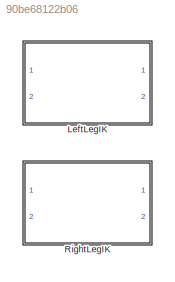
MODEL slx_90be68122b06
KIND library
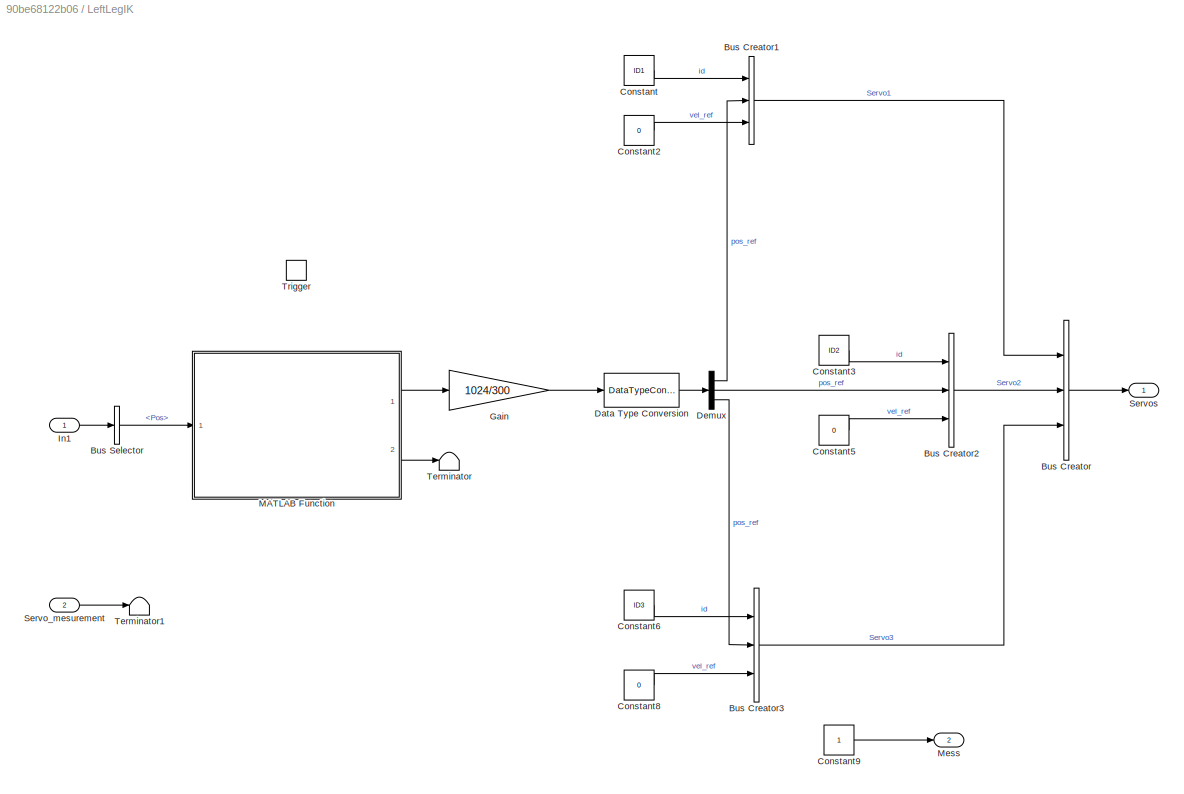
BLOCK [SubSystem] LeftLegIK
  Ports = [2, 2, 0, 1]
  RTWFcnName = LeftLegIK
  RTWFcnNameOpts = User specified
  RTWSystemCode = Reusable function
  RequestExecContextInheritance = off
  TreatAsAtomicUnit = on
BLOCK [BusCreator] LeftLegIK/Bus Creator
  DisplayOption = bar
  InheritFromInputs = off
  Inputs = 3
  NonVirtualBus = on
  OutDataTypeStr = Bus: Leg_ref
  Ports = [3, 1]
BLOCK [BusCreator] LeftLegIK/Bus Creator1
  DisplayOption = bar
  InheritFromInputs = off
  Inputs = 3
  NonVirtualBus = on
  OutDataTypeStr = Bus: Servo
  Ports = [3, 1]
BLOCK [BusCreator] LeftLegIK/Bus Creator2
  DisplayOption = bar
  InheritFromInputs = off
  Inputs = 3
  NonVirtualBus = on
  OutDataTypeStr = Bus: Servo
  Ports = [3, 1]
BLOCK [BusCreator] LeftLegIK/Bus Creator3
  DisplayOption = bar
  InheritFromInputs = off
  Inputs = 3
  NonVirtualBus = on
  OutDataTypeStr = Bus: Servo
  Ports = [3, 1]
BLOCK [BusSelector] LeftLegIK/Bus Selector
  OutputSignals = Pos
  Ports = [1, 1]
BLOCK [Constant] LeftLegIK/Constant
  OutDataTypeStr = uint8
  SampleTime = -1
  Value = ID1
BLOCK [Constant] LeftLegIK/Constant2
  OutDataTypeStr = uint16
  SampleTime = -1
  Value = 0
BLOCK [Constant] LeftLegIK/Constant3
  OutDataTypeStr = uint8
  SampleTime = -1
  Value = ID2
BLOCK [Constant] LeftLegIK/Constant5
  OutDataTypeStr = uint16
  SampleTime = -1
  Value = 0
BLOCK [Constant] LeftLegIK/Constant6
  OutDataTypeStr = uint8
  SampleTime = -1
  Value = ID3
BLOCK [Constant] LeftLegIK/Constant8
  OutDataTypeStr = uint16
  SampleTime = -1
  Value = 0
BLOCK [Constant] LeftLegIK/Constant9
  OutDataTypeStr = uint16
  SampleTime = -1
BLOCK [DataTypeConversion] LeftLegIK/Data Type Conversion
  OutDataTypeStr = uint16
  RndMeth = Floor
  SaturateOnIntegerOverflow = off
BLOCK [Demux] LeftLegIK/Demux
  DisplayOption = bar
  Outputs = 3
  Ports = [1, 3]
BLOCK [Gain] LeftLegIK/Gain
  Gain = 1024/300
  OutDataTypeStr = Inherit: Inherit via internal rule
  ParamDataTypeStr = Inherit: Inherit via internal rule
  SaturateOnIntegerOverflow = off
BLOCK [Inport] LeftLegIK/In1
  IconDisplay = Port number
  OutDataTypeStr = Bus: Leg_data
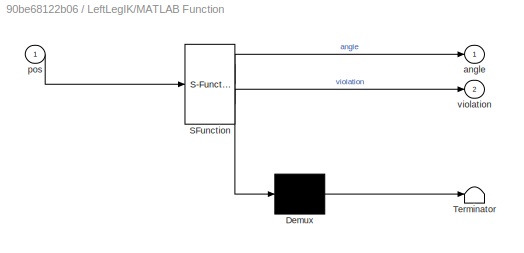
BLOCK [SubSystem] LeftLegIK/MATLAB Function
  ErrorFcn = Stateflow.Translate.translate
  PermitHierarchicalResolution = ExplicitOnly
  Ports = [1, 2]
  RequestExecContextInheritance = off
  SFBlockType = MATLAB Function
  TreatAsAtomicUnit = on
BLOCK [Demux] LeftLegIK/MATLAB Function/ Demux 
  Outputs = 1
  Ports = [1, 1]
BLOCK [S-Function] LeftLegIK/MATLAB Function/ SFunction 
  EnableBusSupport = off
  FunctionName = sf_sfun
  PortCounts = [1 3]
  Ports = [1, 3]
  Tag = Stateflow S-Function LegIK 3
BLOCK [Terminator] LeftLegIK/MATLAB Function/ Terminator 
BLOCK [Outport] LeftLegIK/MATLAB Function/angle
  IconDisplay = Port number
BLOCK [Inport] LeftLegIK/MATLAB Function/pos
  IconDisplay = Port number
BLOCK [Outport] LeftLegIK/MATLAB Function/violation
  IconDisplay = Port number
  Port = 2
BLOCK [Outport] LeftLegIK/Mess
  IconDisplay = Port number
  Port = 2
BLOCK [Inport] LeftLegIK/Servo_mesurement
  IconDisplay = Port number
  OutDataTypeStr = Bus: Leg_mes
  Port = 2
BLOCK [Outport] LeftLegIK/Servos
  IconDisplay = Port number
  OutDataTypeStr = Bus: Leg_ref
  PortDimensions = 3
BLOCK [Terminator] LeftLegIK/Terminator
BLOCK [Terminator] LeftLegIK/Terminator1
BLOCK [TriggerPort] LeftLegIK/Trigger
  PortDimensions = 1
  Ports = []
  StatesWhenEnabling = held
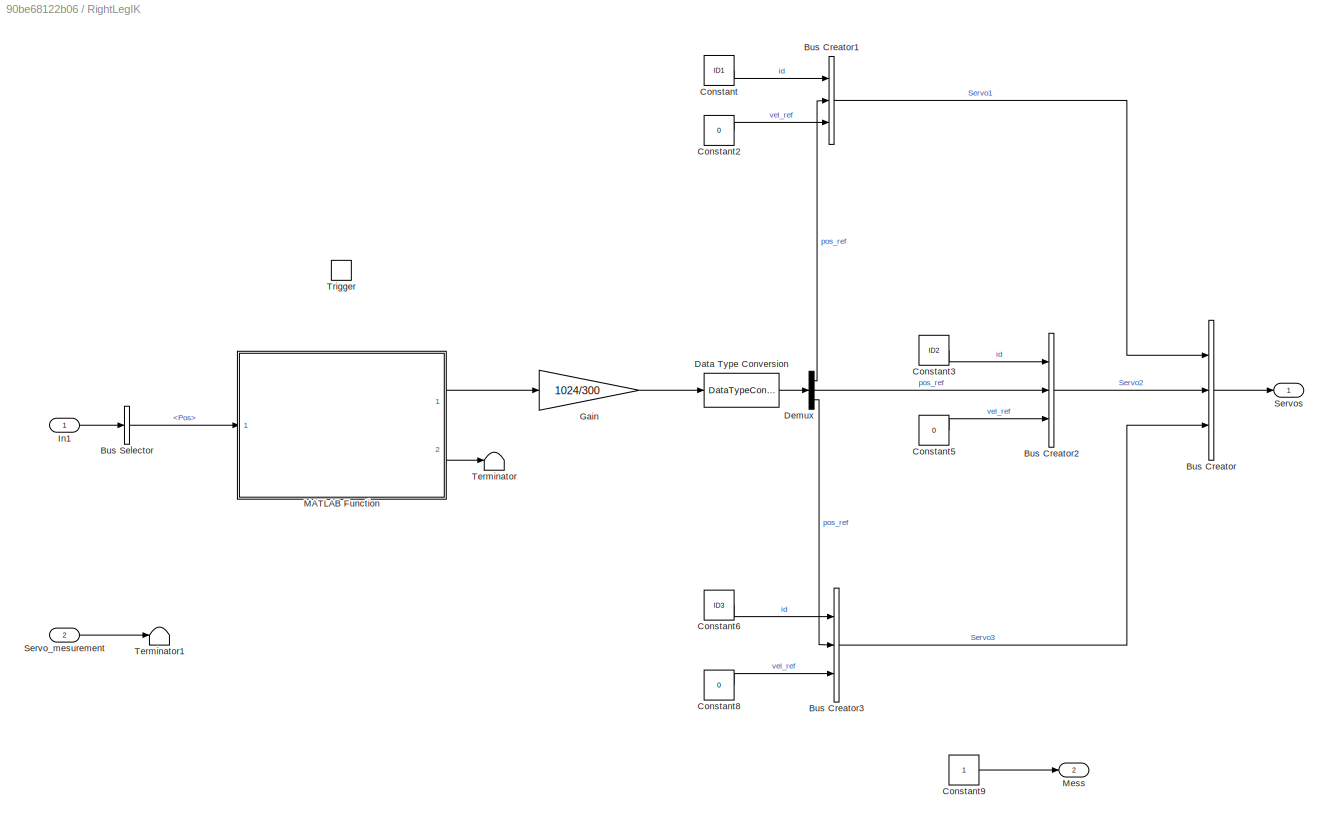
BLOCK [SubSystem] RightLegIK
  Ports = [2, 2, 0, 1]
  RTWFcnName = RightLegIK
  RTWFcnNameOpts = User specified
  RTWSystemCode = Reusable function
  RequestExecContextInheritance = off
  TreatAsAtomicUnit = on
BLOCK [BusCreator] RightLegIK/Bus Creator
  DisplayOption = bar
  InheritFromInputs = off
  Inputs = 3
  NonVirtualBus = on
  OutDataTypeStr = Bus: Leg_ref
  Ports = [3, 1]
BLOCK [BusCreator] RightLegIK/Bus Creator1
  DisplayOption = bar
  InheritFromInputs = off
  Inputs = 3
  NonVirtualBus = on
  OutDataTypeStr = Bus: Servo
  Ports = [3, 1]
BLOCK [BusCreator] RightLegIK/Bus Creator2
  DisplayOption = bar
  InheritFromInputs = off
  Inputs = 3
  NonVirtualBus = on
  OutDataTypeStr = Bus: Servo
  Ports = [3, 1]
BLOCK [BusCreator] RightLegIK/Bus Creator3
  DisplayOption = bar
  InheritFromInputs = off
  Inputs = 3
  NonVirtualBus = on
  OutDataTypeStr = Bus: Servo
  Ports = [3, 1]
BLOCK [BusSelector] RightLegIK/Bus Selector
  OutputSignals = Pos
  Ports = [1, 1]
BLOCK [Constant] RightLegIK/Constant
  OutDataTypeStr = uint8
  SampleTime = -1
  Value = ID1
BLOCK [Constant] RightLegIK/Constant2
  OutDataTypeStr = uint16
  SampleTime = -1
  Value = 0
BLOCK [Constant] RightLegIK/Constant3
  OutDataTypeStr = uint8
  SampleTime = -1
  Value = ID2
BLOCK [Constant] RightLegIK/Constant5
  OutDataTypeStr = uint16
  SampleTime = -1
  Value = 0
BLOCK [Constant] RightLegIK/Constant6
  OutDataTypeStr = uint8
  SampleTime = -1
  Value = ID3
BLOCK [Constant] RightLegIK/Constant8
  OutDataTypeStr = uint16
  SampleTime = -1
  Value = 0
BLOCK [Constant] RightLegIK/Constant9
  OutDataTypeStr = uint16
BLOCK [DataTypeConversion] RightLegIK/Data Type Conversion
  OutDataTypeStr = uint16
  RndMeth = Floor
  SaturateOnIntegerOverflow = off
BLOCK [Demux] RightLegIK/Demux
  DisplayOption = bar
  Outputs = 3
  Ports = [1, 3]
BLOCK [Gain] RightLegIK/Gain
  Gain = 1024/300
  OutDataTypeStr = Inherit: Inherit via internal rule
  ParamDataTypeStr = Inherit: Inherit via internal rule
  SaturateOnIntegerOverflow = off
BLOCK [Inport] RightLegIK/In1
  IconDisplay = Port number
  OutDataTypeStr = Bus: Leg_data
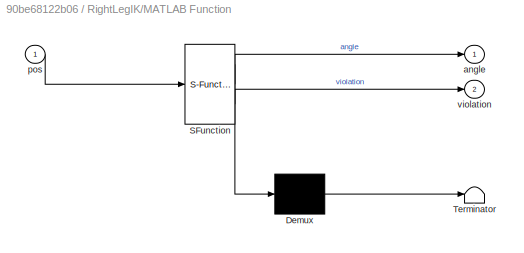
BLOCK [SubSystem] RightLegIK/MATLAB Function
  ErrorFcn = Stateflow.Translate.translate
  PermitHierarchicalResolution = ExplicitOnly
  Ports = [1, 2]
  RequestExecContextInheritance = off
  SFBlockType = MATLAB Function
  TreatAsAtomicUnit = on
BLOCK [Demux] RightLegIK/MATLAB Function/ Demux 
  Outputs = 1
  Ports = [1, 1]
BLOCK [S-Function] RightLegIK/MATLAB Function/ SFunction 
  EnableBusSupport = off
  FunctionName = sf_sfun
  PortCounts = [1 3]
  Ports = [1, 3]
  Tag = Stateflow S-Function LegIK 4
BLOCK [Terminator] RightLegIK/MATLAB Function/ Terminator 
BLOCK [Outport] RightLegIK/MATLAB Function/angle
  IconDisplay = Port number
BLOCK [Inport] RightLegIK/MATLAB Function/pos
  IconDisplay = Port number
BLOCK [Outport] RightLegIK/MATLAB Function/violation
  IconDisplay = Port number
  Port = 2
BLOCK [Outport] RightLegIK/Mess
  IconDisplay = Port number
  Port = 2
BLOCK [Inport] RightLegIK/Servo_mesurement
  IconDisplay = Port number
  OutDataTypeStr = Bus: Leg_mes
  Port = 2
BLOCK [Outport] RightLegIK/Servos
  IconDisplay = Port number
  OutDataTypeStr = Bus: Leg_ref
  PortDimensions = 3
BLOCK [Terminator] RightLegIK/Terminator
BLOCK [Terminator] RightLegIK/Terminator1
BLOCK [TriggerPort] RightLegIK/Trigger
  PortDimensions = 1
  Ports = []
  StatesWhenEnabling = held
LINE LeftLegIK/Bus Creator1:1 -> LeftLegIK/Bus Creator:1
LINE LeftLegIK/Bus Creator2:1 -> LeftLegIK/Bus Creator:2
LINE LeftLegIK/Bus Creator3:1 -> LeftLegIK/Bus Creator:3
LINE LeftLegIK/Bus Creator:1 -> LeftLegIK/Servos:1
LINE LeftLegIK/Bus Selector:1 -> LeftLegIK/MATLAB Function:1
LINE LeftLegIK/Constant2:1 -> LeftLegIK/Bus Creator1:3
LINE LeftLegIK/Constant3:1 -> LeftLegIK/Bus Creator2:1
LINE LeftLegIK/Constant5:1 -> LeftLegIK/Bus Creator2:3
LINE LeftLegIK/Constant6:1 -> LeftLegIK/Bus Creator3:1
LINE LeftLegIK/Constant8:1 -> LeftLegIK/Bus Creator3:3
LINE LeftLegIK/Constant9:1 -> LeftLegIK/Mess:1
LINE LeftLegIK/Constant:1 -> LeftLegIK/Bus Creator1:1
LINE LeftLegIK/Data Type Conversion:1 -> LeftLegIK/Demux:1
LINE LeftLegIK/Demux:1 -> LeftLegIK/Bus Creator1:2
LINE LeftLegIK/Demux:2 -> LeftLegIK/Bus Creator2:2
LINE LeftLegIK/Demux:3 -> LeftLegIK/Bus Creator3:2
LINE LeftLegIK/Gain:1 -> LeftLegIK/Data Type Conversion:1
LINE LeftLegIK/In1:1 -> LeftLegIK/Bus Selector:1
LINE LeftLegIK/MATLAB Function:1 -> LeftLegIK/Gain:1
LINE LeftLegIK/MATLAB Function:2 -> LeftLegIK/Terminator:1
LINE LeftLegIK/Servo_mesurement:1 -> LeftLegIK/Terminator1:1
LINE RightLegIK/Bus Creator1:1 -> RightLegIK/Bus Creator:1
LINE RightLegIK/Bus Creator2:1 -> RightLegIK/Bus Creator:2
LINE RightLegIK/Bus Creator3:1 -> RightLegIK/Bus Creator:3
LINE RightLegIK/Bus Creator:1 -> RightLegIK/Servos:1
LINE RightLegIK/Bus Selector:1 -> RightLegIK/MATLAB Function:1
LINE RightLegIK/Constant2:1 -> RightLegIK/Bus Creator1:3
LINE RightLegIK/Constant3:1 -> RightLegIK/Bus Creator2:1
LINE RightLegIK/Constant5:1 -> RightLegIK/Bus Creator2:3
LINE RightLegIK/Constant6:1 -> RightLegIK/Bus Creator3:1
LINE RightLegIK/Constant8:1 -> RightLegIK/Bus Creator3:3
LINE RightLegIK/Constant9:1 -> RightLegIK/Mess:1
LINE RightLegIK/Constant:1 -> RightLegIK/Bus Creator1:1
LINE RightLegIK/Data Type Conversion:1 -> RightLegIK/Demux:1
LINE RightLegIK/Demux:1 -> RightLegIK/Bus Creator1:2
LINE RightLegIK/Demux:2 -> RightLegIK/Bus Creator2:2
LINE RightLegIK/Demux:3 -> RightLegIK/Bus Creator3:2
LINE RightLegIK/Gain:1 -> RightLegIK/Data Type Conversion:1
LINE RightLegIK/In1:1 -> RightLegIK/Bus Selector:1
LINE RightLegIK/MATLAB Function:1 -> RightLegIK/Gain:1
LINE RightLegIK/MATLAB Function:2 -> RightLegIK/Terminator:1
LINE RightLegIK/Servo_mesurement:1 -> RightLegIK/Terminator1:1
CHART LeftLegIK/MATLAB Function states=1 transitions=1
  STATE_LABEL 'eML_blk_kernel()'
  STATE_LABEL 'SCRIPT:\nfunction [angle, violation] = fcn(pos)\n%Calibration values to measure offset for each angle\n%x=0 y=209.4 z=93.8 \nangle=zeros(1,3);\n\nx=pos(1);\ny=pos(2);\nz=pos(3);\n\nCoxa=53;%tidigare 52\nFemur=66;%From CAD model 66.3456 mm\nTibia=133;%From CAD model 133.1793 mm\n\n\ntrueX=sqrt(x^2+y^2)-Coxa;\n\nz=z+17.6;%Distance from bottom plate to coxa center\nL=sqrt(trueX^2+z^2);\nL2=L^2;\n\n%Cox angle\nangle(1)=ata...<+671ch>'
CHART RightLegIK/MATLAB Function states=1 transitions=1
  STATE_LABEL 'eML_blk_kernel()'
  STATE_LABEL 'SCRIPT:\nfunction [angle, violation] = fcn(pos)\n%Calebration values (mm)\n%x=0 y=209.4 z=93.8 \n\nangle=zeros(1,3);\n\nx=pos(1);\ny=pos(2);\nz=pos(3);\n\nCoxa=53;\nFemur=66;%From CAD model  66.3456 mm\nTibia=133;%From CAD model  133.1793 mm\n\n\ntrueX=sqrt(x^2+y^2)-Coxa;\nz=z+17.6;%Distance from bottom plate to coxa center\nL=sqrt(trueX^2+z^2);\nL2=L^2;\n\n%Cox angle\nangle(1)=-atan2d(x,y);\n\n\n%Femur angle\nalpha1=atan2...<+632ch>'
